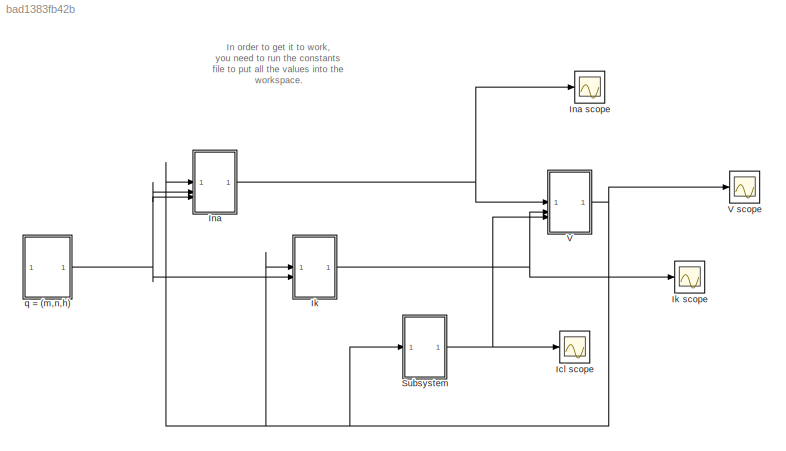
MODEL slx_bad1383fb42b
KIND model
CONFIG AbsTol = auto
CONFIG EnableMultiTasking = off
CONFIG FixedStep = auto
CONFIG MaxStep = auto
CONFIG MinStep = auto
CONFIG RelTol = 1e-3
CONFIG SampleTimeConstraint = Unconstrained
CONFIG SolverName = VariableStepAuto
CONFIG StartTime = 0.0
CONFIG StopTime = 10.0
BLOCK [Scope] Icl scope
  Floating = off
  NumInputPorts = 1
  ScopeSpecificationString = Simulink.scopes.TimeScopeBlockCfg('CurrentConfiguration', extmgr.ConfigurationSet(extmgr.Configuration('Core','General UI',true),extmgr.Configuration('Core','Source UI',true),extmgr.Configuration('Sources','WiredSimulink',true,'DataLoggingVariableName','ScopeData3'),extmgr.Configuration('Visuals','Time Domain',true,'SerializedDisplays',{struct('MinYLimReal','3.45774','MaxYLimReal','8.36247','YLabe...<+1395ch>
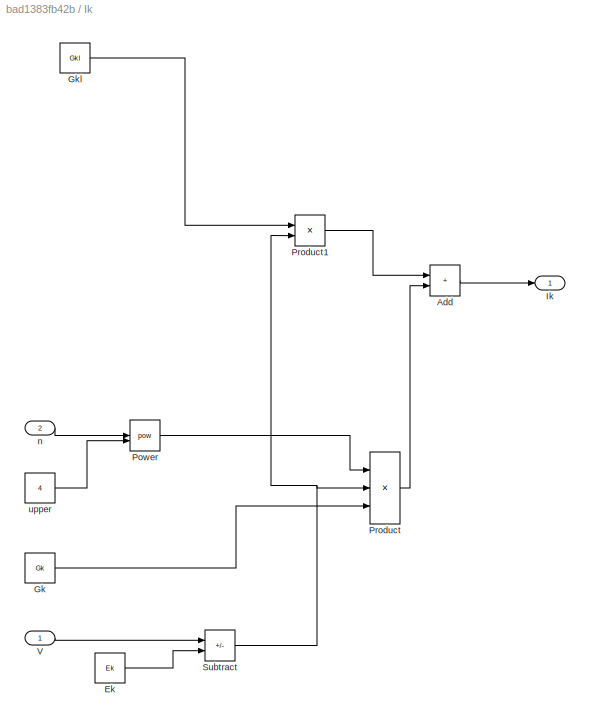
BLOCK [SubSystem] Ik
BLOCK [Scope] Ik scope
  Floating = off
  NumInputPorts = 1
  ScopeSpecificationString = Simulink.scopes.TimeScopeBlockCfg('CurrentConfiguration', extmgr.ConfigurationSet(extmgr.Configuration('Core','General UI',true),extmgr.Configuration('Core','Source UI',true),extmgr.Configuration('Sources','WiredSimulink',true,'DataLoggingVariableName','ScopeData2'),extmgr.Configuration('Visuals','Time Domain',true,'SerializedDisplays',{struct('MinYLimReal','-3.60571','MaxYLimReal','81.58649','YLa...<+1394ch>
BLOCK [Sum] Ik/Add
  IconShape = rectangular
BLOCK [Constant] Ik/Ek
  Value = Ek
BLOCK [Constant] Ik/Gk
  Value = Gk
BLOCK [Constant] Ik/Gkl
  Value = Gkl
BLOCK [Outport] Ik/Ik
BLOCK [Math] Ik/Power
  Operator = pow
BLOCK [Product] Ik/Product
  Inputs = 3
BLOCK [Product] Ik/Product1
BLOCK [Sum] Ik/Subtract
  IconShape = rectangular
  Inputs = +-
BLOCK [Inport] Ik/V
BLOCK [Inport] Ik/n
  Port = 2
BLOCK [Constant] Ik/upper
  Value = 4
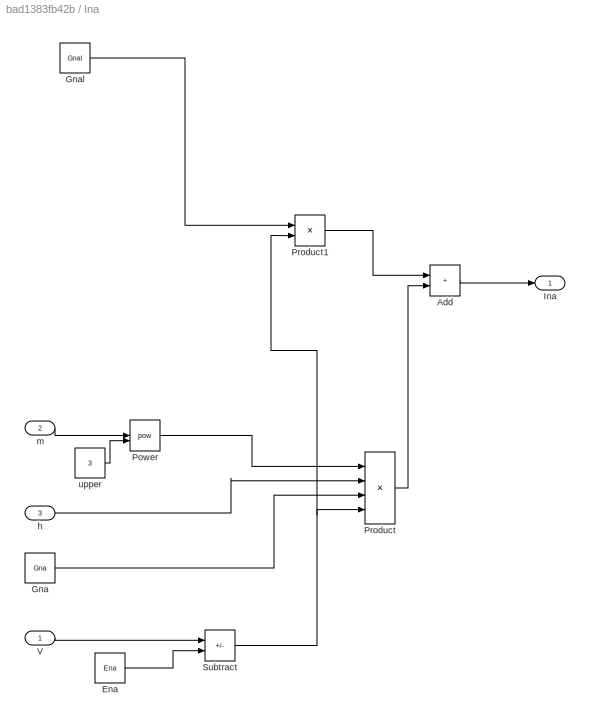
BLOCK [SubSystem] Ina
BLOCK [Scope] Ina scope
  Floating = off
  NumInputPorts = 1
  ScopeSpecificationString = Simulink.scopes.TimeScopeBlockCfg('CurrentConfiguration', extmgr.ConfigurationSet(extmgr.Configuration('Core','General UI',true),extmgr.Configuration('Core','Source UI',true),extmgr.Configuration('Sources','WiredSimulink',true,'DataLoggingVariableName','ScopeData1'),extmgr.Configuration('Visuals','Time Domain',true,'SerializedDisplays',{struct('MinYLimReal','-64.98102','MaxYLimReal','6.79884','YLa...<+1395ch>
BLOCK [Sum] Ina/Add
  IconShape = rectangular
BLOCK [Constant] Ina/Ena
  Value = Ena
BLOCK [Constant] Ina/Gna
  Value = Gna
BLOCK [Constant] Ina/Gnal
  Value = Gnal
BLOCK [Outport] Ina/Ina
BLOCK [Math] Ina/Power
  Operator = pow
BLOCK [Product] Ina/Product
  Inputs = 4
BLOCK [Product] Ina/Product1
BLOCK [Sum] Ina/Subtract
  IconShape = rectangular
  Inputs = +-
BLOCK [Inport] Ina/V
BLOCK [Inport] Ina/h
  Port = 3
BLOCK [Inport] Ina/m
  Port = 2
BLOCK [Constant] Ina/upper
  Value = 3
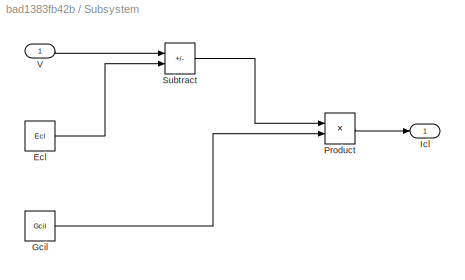
BLOCK [SubSystem] Subsystem
BLOCK [Constant] Subsystem/Ecl
  Value = Ecl
BLOCK [Constant] Subsystem/Gcil
  Value = Gcil
BLOCK [Outport] Subsystem/Icl
BLOCK [Product] Subsystem/Product
BLOCK [Sum] Subsystem/Subtract
  IconShape = rectangular
  Inputs = +-
BLOCK [Inport] Subsystem/V
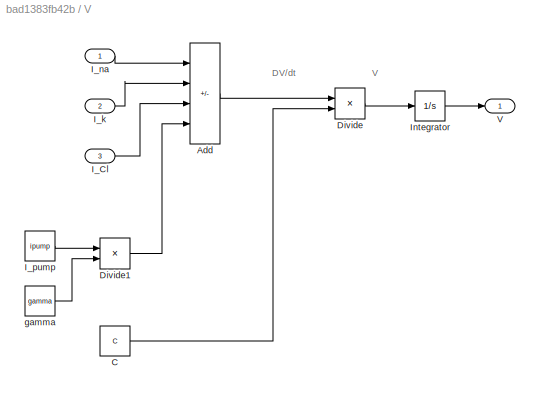
BLOCK [SubSystem] V
BLOCK [Scope] V scope
  Floating = off
  NumInputPorts = 1
  ScopeSpecificationString = Simulink.scopes.TimeScopeBlockCfg('CurrentConfiguration', extmgr.ConfigurationSet(extmgr.Configuration('Core','General UI',true),extmgr.Configuration('Core','Source UI',true),extmgr.Configuration('Sources','WiredSimulink',true),extmgr.Configuration('Visuals','Time Domain',true,'SerializedDisplays',{struct('MinYLimReal','-44.14257','MaxYLimReal','4.90473','YLabelReal','','MinYLimMag','0.00000','Max...<+1354ch>
BLOCK [Sum] V/Add
  IconShape = rectangular
  Inputs = ----
BLOCK [Constant] V/C
  Value = C
BLOCK [Product] V/Divide
  Inputs = */
BLOCK [Product] V/Divide1
  Inputs = */
BLOCK [Inport] V/I_Cl
  Port = 3
BLOCK [Inport] V/I_k
  Port = 2
BLOCK [Inport] V/I_na
BLOCK [Constant] V/I_pump
  Value = ipump
BLOCK [Integrator] V/Integrator
BLOCK [Outport] V/V
BLOCK [Constant] V/gamma
  Value = gamma
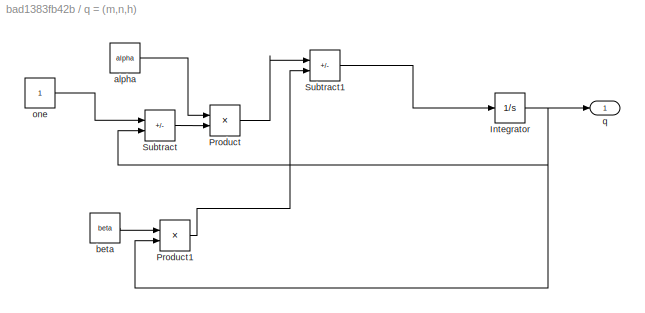
BLOCK [SubSystem] q = (m,n,h)
BLOCK [Integrator] q = (m,n,h)/Integrator
BLOCK [Product] q = (m,n,h)/Product
BLOCK [Product] q = (m,n,h)/Product1
BLOCK [Sum] q = (m,n,h)/Subtract
  IconShape = rectangular
  Inputs = +-
BLOCK [Sum] q = (m,n,h)/Subtract1
  IconShape = rectangular
  Inputs = +-
BLOCK [Constant] q = (m,n,h)/alpha
  Value = alpha
BLOCK [Constant] q = (m,n,h)/beta
  Value = beta
BLOCK [Constant] q = (m,n,h)/one
BLOCK [Outport] q = (m,n,h)/q
ANNOTATION (root): In order to get it to work, you need to run the constants file to put all the values into the workspace.
ANNOTATION V: DV/dt
ANNOTATION V: V
LINE Ik/Add:1 -> Ik/Ik:1
LINE Ik/Ek:1 -> Ik/Subtract:2
LINE Ik/Gk:1 -> Ik/Product:3
LINE Ik/Gkl:1 -> Ik/Product1:1
LINE Ik/Power:1 -> Ik/Product:1
LINE Ik/Product1:1 -> Ik/Add:1
LINE Ik/Product:1 -> Ik/Add:2
NET Ik/Subtract:1 -> Ik/Product1:2, Ik/Product:2
LINE Ik/V:1 -> Ik/Subtract:1
LINE Ik/n:1 -> Ik/Power:1
LINE Ik/upper:1 -> Ik/Power:2
NET Ik:1 -> Ik scope:1, V:2
LINE Ina/Add:1 -> Ina/Ina:1
LINE Ina/Ena:1 -> Ina/Subtract:2
LINE Ina/Gna:1 -> Ina/Product:3
LINE Ina/Gnal:1 -> Ina/Product1:1
LINE Ina/Power:1 -> Ina/Product:1
LINE Ina/Product1:1 -> Ina/Add:1
LINE Ina/Product:1 -> Ina/Add:2
NET Ina/Subtract:1 -> Ina/Product1:2, Ina/Product:4
LINE Ina/V:1 -> Ina/Subtract:1
LINE Ina/h:1 -> Ina/Product:2
LINE Ina/m:1 -> Ina/Power:1
LINE Ina/upper:1 -> Ina/Power:2
NET Ina:1 -> Ina scope:1, V:1
LINE Subsystem/Ecl:1 -> Subsystem/Subtract:2
LINE Subsystem/Gcil:1 -> Subsystem/Product:2
LINE Subsystem/Product:1 -> Subsystem/Icl:1
LINE Subsystem/Subtract:1 -> Subsystem/Product:1
LINE Subsystem/V:1 -> Subsystem/Subtract:1
NET Subsystem:1 -> Icl scope:1, V:3
LINE V/Add:1 -> V/Divide:1
LINE V/C:1 -> V/Divide:2
LINE V/Divide1:1 -> V/Add:4
LINE V/Divide:1 -> V/Integrator:1
LINE V/I_Cl:1 -> V/Add:3
LINE V/I_k:1 -> V/Add:2
LINE V/I_na:1 -> V/Add:1
LINE V/I_pump:1 -> V/Divide1:1
LINE V/Integrator:1 -> V/V:1
LINE V/gamma:1 -> V/Divide1:2
NET V:1 -> Ik:1, Ina:1, Subsystem:1, V scope:1
NET q = (m,n,h)/Integrator:1 -> q = (m,n,h)/Product1:2, q = (m,n,h)/Subtract:2, q = (m,n,h)/q:1
LINE q = (m,n,h)/Product1:1 -> q = (m,n,h)/Subtract1:2
LINE q = (m,n,h)/Product:1 -> q = (m,n,h)/Subtract1:1
LINE q = (m,n,h)/Subtract1:1 -> q = (m,n,h)/Integrator:1
LINE q = (m,n,h)/Subtract:1 -> q = (m,n,h)/Product:2
LINE q = (m,n,h)/alpha:1 -> q = (m,n,h)/Product:1
LINE q = (m,n,h)/beta:1 -> q = (m,n,h)/Product1:1
LINE q = (m,n,h)/one:1 -> q = (m,n,h)/Subtract:1
NET q = (m,n,h):1 -> Ik:2, Ina:2, Ina:3
note: NET lines group one-source signal fan-out (src -> all destinations, sorted); 1:1 wires keep LINE
